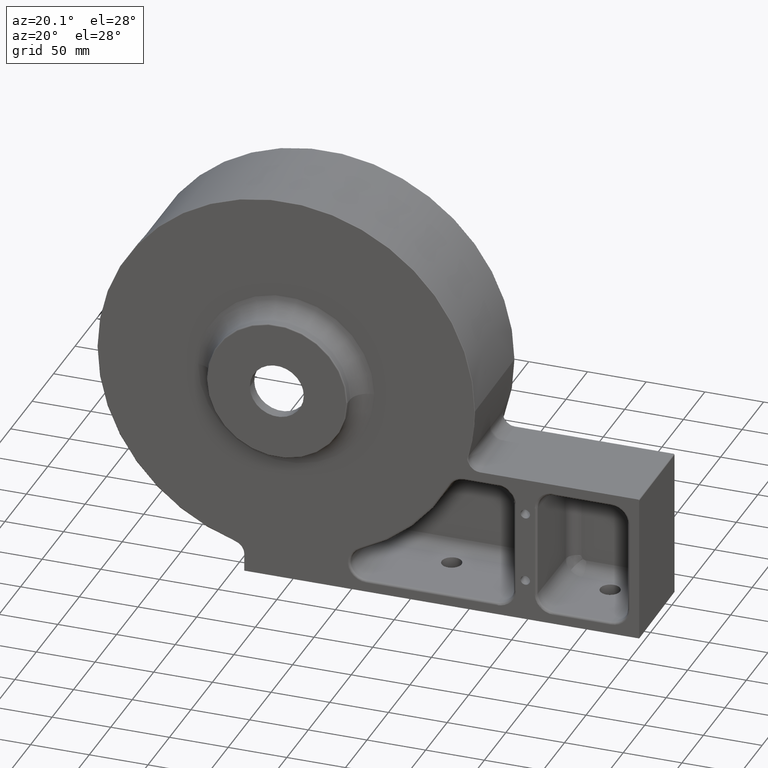
[diagram: clean part render]
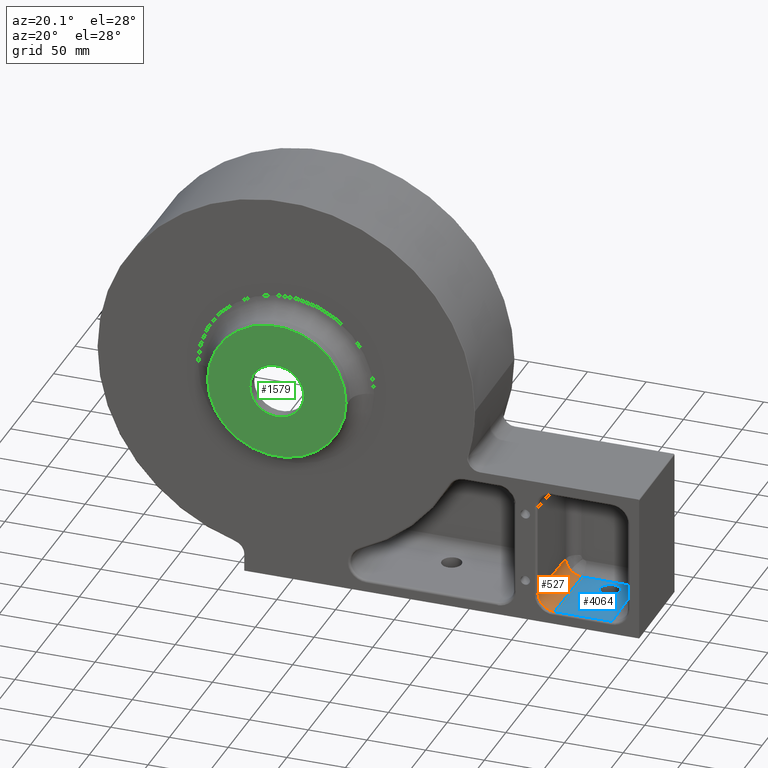
[diagram: same view with three faces highlighted in distinct colors, each labeled with its STEP entity id]
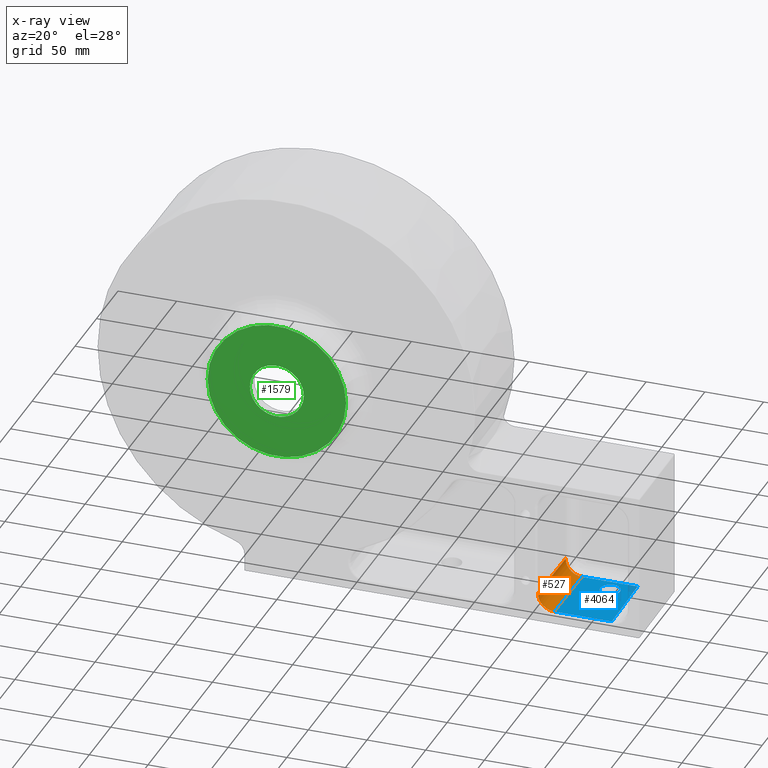
[diagram: x-ray of the same camera — body ghosted, the three highlighted faces saturated]
A machine part, auxiliary view with three faces highlighted in distinct colors.
The next image is the same camera in x-ray (body ghosted, the three faces saturated) — at least one of them is partly hidden behind the body in this view.
Their STEP definitions:

[orange] entity #527 — the highlighted cylindrical surface (edge-blend (fillet) strip) has radius 14 mm, axis along (-0.0262, -0.9993, -0.0262).
#191 = CARTESIAN_POINT ( 'NONE',  ( 215.3721655746571741, 84.06116045583146956, -154.3744156378994603 ) ) ;
#207 = CARTESIAN_POINT ( 'NONE',  ( 217.8907358500262319, 23.72537673625769017, -165.8510479121883066 ) ) ;
#262 = VERTEX_POINT ( 'NONE', #2860 ) ;
#324 = CARTESIAN_POINT ( 'NONE',  ( 219.4735199301286173, 84.16946215522769137, -164.2682638320858928 ) ) ;
#386 =( BOUNDED_CURVE ( )  B_SPLINE_CURVE ( 3, ( #926, #2517, #638, #2188 ),
 .UNSPECIFIED., .F., .F. ) 
 B_SPLINE_CURVE_WITH_KNOTS ( ( 4, 4 ),
 ( 5.498129760120304965, 6.283185307179586232 ),
 .UNSPECIFIED. ) 
 CURVE ( )  GEOMETRIC_REPRESENTATION_ITEM ( )  RATIONAL_B_SPLINE_CURVE ( ( 1.000000000000000000, 0.9492967171685287031, 0.9492967171685287031, 1.000000000000000000 ) ) 
 REPRESENTATION_ITEM ( '' )  );
#527 = ADVANCED_FACE ( 'NONE', ( #1168 ), #1188, .F. ) ;
#620 = LINE ( 'NONE', #2829, #2485 ) ;
#638 = CARTESIAN_POINT ( 'NONE',  ( 215.2313594909512631, 23.72537673625769017, -163.1916715531133377 ) ) ;
#712 = CARTESIAN_POINT ( 'NONE',  ( 224.0254047391594270, 23.73298248603276406, -169.9493671242863684 ) ) ;
#714 = CARTESIAN_POINT ( 'NONE',  ( 229.3673681243149929, 84.06116045583145535, -168.3696181875572790 ) ) ;
#724 = CARTESIAN_POINT ( 'NONE',  ( 225.6069938378592781, 84.13143340635230061, -168.3677780255864604 ) ) ;
#822 = CARTESIAN_POINT ( 'NONE',  ( 215.3721655746571741, 84.06116045583146956, -154.3744156378994603 ) ) ;
#926 = CARTESIAN_POINT ( 'NONE',  ( 213.7927846703222485, 23.74703707613693737, -155.9537965422344143 ) ) ;
#957 = ORIENTED_EDGE ( 'NONE', *, *, #4040, .F. ) ;
#969 = ORIENTED_EDGE ( 'NONE', *, *, #1998, .T. ) ;
#1007 = EDGE_CURVE ( 'NONE', #2880, #262, #3084, .T. ) ;
#1165 = DIRECTION ( 'NONE',  ( 0.02616798426497926947, 0.9993150019883697555, 0.02616798426497939783 ) ) ;
#1168 = FACE_OUTER_BOUND ( 'NONE', #1342, .T. ) ;
#1188 = CYLINDRICAL_SURFACE ( 'NONE', #2913, 14.00000000000000355 ) ;
#1207 = CARTESIAN_POINT ( 'NONE',  ( 227.6278430550691212, 17.26490087646734750, -156.1139407071454173 ) ) ;
#1240 = CARTESIAN_POINT ( 'NONE',  ( 227.7879872199800388, 23.74703707613694093, -169.9489990918922331 ) ) ;
#1335 = VECTOR ( 'NONE', #1165, 1000.000000000000227 ) ;
#1342 = EDGE_LOOP ( 'NONE', ( #1946, #3125, #3373, #957, #2662, #969 ) ) ;
#1509 = LINE ( 'NONE', #4012, #1335 ) ;
#1652 =( BOUNDED_CURVE ( )  B_SPLINE_CURVE ( 3, ( #2433, #3755, #1762, #191 ),
 .UNSPECIFIED., .F., .T. ) 
 B_SPLINE_CURVE_WITH_KNOTS ( ( 4, 4 ),
 ( -1.776356839400250465E-15, 0.7850555470592772700 ),
 .UNSPECIFIED. ) 
 CURVE ( )  GEOMETRIC_REPRESENTATION_ITEM ( )  RATIONAL_B_SPLINE_CURVE ( ( 1.000000000000000000, 0.9492967171685290362, 0.9492967171685290362, 1.000000000000000000 ) ) 
 REPRESENTATION_ITEM ( '' )  );
#1729 = EDGE_CURVE ( 'NONE', #3095, #2033, #386, .T. ) ;
#1762 = CARTESIAN_POINT ( 'NONE',  ( 215.3740057366280212, 84.13143340635230061, -158.1347899243551751 ) ) ;
#1809 = DIRECTION ( 'NONE',  ( 0.0000000000000000000, 0.02617694830787322194, -0.9996573249755572599 ) ) ;
#1820 =( BOUNDED_CURVE ( )  B_SPLINE_CURVE ( 3, ( #3895, #2922, #712, #2687 ),
 .UNSPECIFIED., .F., .T. ) 
 B_SPLINE_CURVE_WITH_KNOTS ( ( 4, 4 ),
 ( 0.0000000000000000000, 0.7850555470592749385 ),
 .UNSPECIFIED. ) 
 CURVE ( )  GEOMETRIC_REPRESENTATION_ITEM ( )  RATIONAL_B_SPLINE_CURVE ( ( 1.000000000000000000, 0.9492967171685294803, 0.9492967171685294803, 1.000000000000000000 ) ) 
 REPRESENTATION_ITEM ( '' )  );
#1946 = ORIENTED_EDGE ( 'NONE', *, *, #2787, .F. ) ;
#1988 = CARTESIAN_POINT ( 'NONE',  ( 222.1328962892035577, 84.16946215522769137, -166.9276401911608332 ) ) ;
#1998 = EDGE_CURVE ( 'NONE', #262, #3214, #1652, .T. ) ;
#2033 = VERTEX_POINT ( 'NONE', #207 ) ;
#2036 = CARTESIAN_POINT ( 'NONE',  ( 213.7927846703222485, 23.74703707613693737, -155.9537965422344143 ) ) ;
#2103 = VERTEX_POINT ( 'NONE', #1240 ) ;
#2188 = CARTESIAN_POINT ( 'NONE',  ( 217.8907358500262319, 23.72537673625769017, -165.8510479121883066 ) ) ;
#2424 = DIRECTION ( 'NONE',  ( -0.02616798426497927640, -0.9993150019883699775, -0.02616798426497940130 ) ) ;
#2433 = CARTESIAN_POINT ( 'NONE',  ( 219.4735199301286173, 84.16946215522769137, -164.2682638320858928 ) ) ;
#2485 = VECTOR ( 'NONE', #2815, 1000.000000000000227 ) ;
#2517 = CARTESIAN_POINT ( 'NONE',  ( 213.7924166379281417, 23.73298248603276406, -159.7163790230550546 ) ) ;
#2662 = ORIENTED_EDGE ( 'NONE', *, *, #1007, .T. ) ;
#2687 = CARTESIAN_POINT ( 'NONE',  ( 227.7879872199800388, 23.74703707613694093, -169.9489990918922331 ) ) ;
#2787 = EDGE_CURVE ( 'NONE', #3095, #3214, #1509, .T. ) ;
#2815 = DIRECTION ( 'NONE',  ( -0.02616798426497926947, -0.9993150019883697555, -0.02616798426497939437 ) ) ;
#2829 = CARTESIAN_POINT ( 'NONE',  ( 227.6278430550690643, 17.63137815277757170, -170.1091432568032076 ) ) ;
#2860 = CARTESIAN_POINT ( 'NONE',  ( 219.4735199301286173, 84.16946215522769137, -164.2682638320858928 ) ) ;
#2880 = VERTEX_POINT ( 'NONE', #714 ) ;
#2913 = AXIS2_PLACEMENT_3D ( 'NONE', #1207, #2424, #1809 ) ;
#2922 = CARTESIAN_POINT ( 'NONE',  ( 220.5501122091011439, 23.72537673625769372, -168.5104242712632185 ) ) ;
#3066 = EDGE_CURVE ( 'NONE', #2033, #2103, #1820, .T. ) ;
#3084 =( BOUNDED_CURVE ( )  B_SPLINE_CURVE ( 3, ( #3564, #724, #1988, #324 ),
 .UNSPECIFIED., .F., .F. ) 
 B_SPLINE_CURVE_WITH_KNOTS ( ( 4, 4 ),
 ( 5.498129760120308518, 6.283185307179584456 ),
 .UNSPECIFIED. ) 
 CURVE ( )  GEOMETRIC_REPRESENTATION_ITEM ( )  RATIONAL_B_SPLINE_CURVE ( ( 1.000000000000000000, 0.9492967171685290362, 0.9492967171685290362, 1.000000000000000000 ) ) 
 REPRESENTATION_ITEM ( '' )  );
#3095 = VERTEX_POINT ( 'NONE', #2036 ) ;
#3125 = ORIENTED_EDGE ( 'NONE', *, *, #1729, .T. ) ;
#3214 = VERTEX_POINT ( 'NONE', #822 ) ;
#3373 = ORIENTED_EDGE ( 'NONE', *, *, #3066, .T. ) ;
#3564 = CARTESIAN_POINT ( 'NONE',  ( 229.3673681243149929, 84.06116045583145535, -168.3696181875572790 ) ) ;
#3755 = CARTESIAN_POINT ( 'NONE',  ( 216.8141435710536769, 84.16946215522769137, -161.6088874730109524 ) ) ;
#3895 = CARTESIAN_POINT ( 'NONE',  ( 217.8907358500262319, 23.72537673625769017, -165.8510479121883066 ) ) ;
#4012 = CARTESIAN_POINT ( 'NONE',  ( 213.8046084631491510, 24.19856950724317457, -155.9419727494075119 ) ) ;
#4040 = EDGE_CURVE ( 'NONE', #2880, #2103, #620, .T. ) ;

[blue] entity #4064 — the highlighted planar face has unit normal (0, 0.0262, -0.9997).
#31 = CARTESIAN_POINT ( 'NONE',  ( 249.2417837622145100, 71.79939097275266136, -168.6907039215406314 ) ) ;
#168 = ORIENTED_EDGE ( 'NONE', *, *, #2575, .F. ) ;
#186 = VERTEX_POINT ( 'NONE', #3805 ) ;
#374 = LINE ( 'NONE', #2550, #616 ) ;
#376 = VERTEX_POINT ( 'NONE', #2652 ) ;
#616 = VECTOR ( 'NONE', #3538, 1000.000000000000114 ) ;
#620 = LINE ( 'NONE', #2829, #2485 ) ;
#625 = EDGE_LOOP ( 'NONE', ( #1768, #711, #168, #2670 ) ) ;
#711 = ORIENTED_EDGE ( 'NONE', *, *, #2489, .T. ) ;
#714 = CARTESIAN_POINT ( 'NONE',  ( 229.3673681243149929, 84.06116045583145535, -168.3696181875572790 ) ) ;
#735 = CARTESIAN_POINT ( 'NONE',  ( 249.2417837622145100, 71.79939097275266136, -168.6907039215406314 ) ) ;
#762 = AXIS2_PLACEMENT_3D ( 'NONE', #3254, #1882, #910 ) ;
#880 = VECTOR ( 'NONE', #3423, 1000.000000000000000 ) ;
#910 = DIRECTION ( 'NONE',  ( 0.0000000000000000000, 0.9996573249755572599, 0.02617694830787320806 ) ) ;
#933 =( BOUNDED_CURVE ( )  B_SPLINE_CURVE ( 3, ( #2623, #1049, #3575, #735 ),
 .UNSPECIFIED., .F., .T. ) 
 B_SPLINE_CURVE_WITH_KNOTS ( ( 4, 4 ),
 ( 1.570796326794901665, 4.712388980384695003 ),
 .UNSPECIFIED. ) 
 CURVE ( )  GEOMETRIC_REPRESENTATION_ITEM ( )  RATIONAL_B_SPLINE_CURVE ( ( 1.000000000000000000, 0.3333333333333333703, 0.3333333333333333703, 1.000000000000000000 ) ) 
 REPRESENTATION_ITEM ( '' )  );
#1006 = VERTEX_POINT ( 'NONE', #2615 ) ;
#1049 = CARTESIAN_POINT ( 'NONE',  ( 266.2417837622145385, 88.79939097275268978, -168.2455432548644296 ) ) ;
#1240 = CARTESIAN_POINT ( 'NONE',  ( 227.7879872199800388, 23.74703707613694093, -169.9489990918922331 ) ) ;
#1581 = PLANE ( 'NONE',  #762 ) ;
#1596 = FACE_OUTER_BOUND ( 'NONE', #625, .T. ) ;
#1658 = DIRECTION ( 'NONE',  ( -1.000000000000000000, -1.214623636765614367E-16, -1.328815102230828392E-16 ) ) ;
#1768 = ORIENTED_EDGE ( 'NONE', *, *, #4040, .T. ) ;
#1882 = DIRECTION ( 'NONE',  ( 1.296564610330057547E-16, 0.02617694830787321153, -0.9996573249755573709 ) ) ;
#1908 = CARTESIAN_POINT ( 'NONE',  ( 249.2417837622145100, 54.79939097275264714, -169.1358645882168048 ) ) ;
#1920 = EDGE_CURVE ( 'NONE', #376, #2836, #933, .T. ) ;
#1944 = CARTESIAN_POINT ( 'NONE',  ( 249.2417837622145100, 71.79939097275266136, -168.6907039215406314 ) ) ;
#2086 = EDGE_LOOP ( 'NONE', ( #2090, #3407 ) ) ;
#2090 = ORIENTED_EDGE ( 'NONE', *, *, #2534, .F. ) ;
#2103 = VERTEX_POINT ( 'NONE', #1240 ) ;
#2207 =( BOUNDED_CURVE ( )  B_SPLINE_CURVE ( 3, ( #31, #1908, #2609, #2875 ),
 .UNSPECIFIED., .F., .T. ) 
 B_SPLINE_CURVE_WITH_KNOTS ( ( 4, 4 ),
 ( 4.712388980384695003, 7.853981633974488119 ),
 .UNSPECIFIED. ) 
 CURVE ( )  GEOMETRIC_REPRESENTATION_ITEM ( )  RATIONAL_B_SPLINE_CURVE ( ( 1.000000000000000000, 0.3333333333333333703, 0.3333333333333333703, 1.000000000000000000 ) ) 
 REPRESENTATION_ITEM ( '' )  );
#2485 = VECTOR ( 'NONE', #2815, 1000.000000000000227 ) ;
#2489 = EDGE_CURVE ( 'NONE', #2103, #186, #3639, .T. ) ;
#2534 = EDGE_CURVE ( 'NONE', #2836, #376, #2207, .T. ) ;
#2550 = CARTESIAN_POINT ( 'NONE',  ( 276.7417837622145953, 21.79939097275269688, -169.9999999999999432 ) ) ;
#2575 = EDGE_CURVE ( 'NONE', #1006, #186, #374, .T. ) ;
#2609 = CARTESIAN_POINT ( 'NONE',  ( 266.2417837622145385, 54.79939097275264714, -169.1358645882168048 ) ) ;
#2615 = CARTESIAN_POINT ( 'NONE',  ( 276.7417837622145953, 84.06116045583142693, -168.3696181875572506 ) ) ;
#2623 = CARTESIAN_POINT ( 'NONE',  ( 266.2417837622145385, 71.79939097275266136, -168.6907039215406314 ) ) ;
#2629 = EDGE_CURVE ( 'NONE', #1006, #2880, #3182, .T. ) ;
#2652 = CARTESIAN_POINT ( 'NONE',  ( 266.2417837622145385, 71.79939097275266136, -168.6907039215406314 ) ) ;
#2670 = ORIENTED_EDGE ( 'NONE', *, *, #2629, .T. ) ;
#2815 = DIRECTION ( 'NONE',  ( -0.02616798426497926947, -0.9993150019883697555, -0.02616798426497939437 ) ) ;
#2829 = CARTESIAN_POINT ( 'NONE',  ( 227.6278430550690643, 17.63137815277757170, -170.1091432568032076 ) ) ;
#2836 = VERTEX_POINT ( 'NONE', #1944 ) ;
#2875 = CARTESIAN_POINT ( 'NONE',  ( 266.2417837622145385, 71.79939097275266136, -168.6907039215406314 ) ) ;
#2880 = VERTEX_POINT ( 'NONE', #714 ) ;
#2915 = VECTOR ( 'NONE', #1658, 1000.000000000000000 ) ;
#3090 = CARTESIAN_POINT ( 'NONE',  ( 276.7417837622144816, 23.74703707613694448, -169.9489990918922047 ) ) ;
#3182 = LINE ( 'NONE', #3224, #2915 ) ;
#3224 = CARTESIAN_POINT ( 'NONE',  ( 68.34871187316556984, 84.06116045583141272, -168.3696181875572790 ) ) ;
#3254 = CARTESIAN_POINT ( 'NONE',  ( 68.34871187316558405, 21.79939097275266846, -169.9999999999999716 ) ) ;
#3407 = ORIENTED_EDGE ( 'NONE', *, *, #1920, .F. ) ;
#3423 = DIRECTION ( 'NONE',  ( 1.000000000000000000, 1.214623636765614367E-16, 1.328815102230828392E-16 ) ) ;
#3538 = DIRECTION ( 'NONE',  ( 1.277164725099799303E-16, -0.9996573249755572599, -0.02617694830787321153 ) ) ;
#3575 = CARTESIAN_POINT ( 'NONE',  ( 249.2417837622145100, 88.79939097275268978, -168.2455432548644296 ) ) ;
#3639 = LINE ( 'NONE', #3090, #880 ) ;
#3805 = CARTESIAN_POINT ( 'NONE',  ( 276.7417837622145953, 23.74703707613694448, -169.9489990918922047 ) ) ;
#4040 = EDGE_CURVE ( 'NONE', #2880, #2103, #620, .T. ) ;
#4064 = ADVANCED_FACE ( 'NONE', ( #4086, #1596 ), #1581, .F. ) ;
#4086 = FACE_BOUND ( 'NONE', #2086, .T. ) ;

[green] entity #1579 — the highlighted planar face has unit normal (0, -1, 0).
#104 = DIRECTION ( 'NONE',  ( -1.000000000000000000, -1.214623636765614121E-16, 0.0000000000000000000 ) ) ;
#176 = FACE_BOUND ( 'NONE', #3105, .T. ) ;
#215 = CARTESIAN_POINT ( 'NONE',  ( -58.99999999999998579, -6.684395046983998997E-16, 0.0000000000000000000 ) ) ;
#232 = AXIS2_PLACEMENT_3D ( 'NONE', #4057, #1216, #2475 ) ;
#343 = CIRCLE ( 'NONE', #3382, 59.00000000000000000 ) ;
#411 = DIRECTION ( 'NONE',  ( -1.214623636765614367E-16, 1.000000000000000000, -0.0000000000000000000 ) ) ;
#451 = DIRECTION ( 'NONE',  ( -1.000000000000000000, -1.214623636765614367E-16, 0.0000000000000000000 ) ) ;
#473 = DIRECTION ( 'NONE',  ( -1.000000000000000000, -1.214623636765614121E-16, 0.0000000000000000000 ) ) ;
#885 = AXIS2_PLACEMENT_3D ( 'NONE', #215, #2777, #2461 ) ;
#1085 = CIRCLE ( 'NONE', #232, 23.00000000000000000 ) ;
#1113 = VERTEX_POINT ( 'NONE', #3614 ) ;
#1151 = CIRCLE ( 'NONE', #1752, 23.00000000000000000 ) ;
#1195 = ORIENTED_EDGE ( 'NONE', *, *, #3424, .T. ) ;
#1216 = DIRECTION ( 'NONE',  ( -1.214623636765614367E-16, 1.000000000000000000, -0.0000000000000000000 ) ) ;
#1300 = VERTEX_POINT ( 'NONE', #1347 ) ;
#1347 = CARTESIAN_POINT ( 'NONE',  ( -22.99999999999998579, -2.793634364560912921E-15, 0.0000000000000000000 ) ) ;
#1546 = ORIENTED_EDGE ( 'NONE', *, *, #3286, .T. ) ;
#1579 = ADVANCED_FACE ( 'NONE', ( #176, #2757 ), #3676, .T. ) ;
#1585 = ORIENTED_EDGE ( 'NONE', *, *, #2897, .F. ) ;
#1752 = AXIS2_PLACEMENT_3D ( 'NONE', #2097, #2413, #451 ) ;
#1899 = EDGE_CURVE ( 'NONE', #1113, #2365, #343, .T. ) ;
#1976 = VERTEX_POINT ( 'NONE', #2392 ) ;
#2097 = CARTESIAN_POINT ( 'NONE',  ( 1.425374463786146781E-14, 0.0000000000000000000, 0.0000000000000000000 ) ) ;
#2196 = CARTESIAN_POINT ( 'NONE',  ( 59.00000000000001421, 2.104406726473158229E-14, 7.286648454926750781E-15 ) ) ;
#2333 = CARTESIAN_POINT ( 'NONE',  ( 1.425374463786146781E-14, 1.387778780781445676E-14, 0.0000000000000000000 ) ) ;
#2365 = VERTEX_POINT ( 'NONE', #2196 ) ;
#2392 = CARTESIAN_POINT ( 'NONE',  ( 23.00000000000001421, 2.793634364560912921E-15, 2.816687638038912352E-15 ) ) ;
#2413 = DIRECTION ( 'NONE',  ( -1.214623636765614367E-16, 1.000000000000000000, -0.0000000000000000000 ) ) ;
#2461 = DIRECTION ( 'NONE',  ( 1.000000000000000000, 1.214623636765614367E-16, 0.0000000000000000000 ) ) ;
#2475 = DIRECTION ( 'NONE',  ( -1.000000000000000000, -1.214623636765614367E-16, 0.0000000000000000000 ) ) ;
#2685 = EDGE_LOOP ( 'NONE', ( #3492, #1585 ) ) ;
#2757 = FACE_OUTER_BOUND ( 'NONE', #2685, .T. ) ;
#2777 = DIRECTION ( 'NONE',  ( 1.214623636765614367E-16, -1.000000000000000000, 0.0000000000000000000 ) ) ;
#2897 = EDGE_CURVE ( 'NONE', #2365, #1113, #3797, .T. ) ;
#2946 = DIRECTION ( 'NONE',  ( -1.214623636765614367E-16, 1.000000000000000000, -0.0000000000000000000 ) ) ;
#3056 = AXIS2_PLACEMENT_3D ( 'NONE', #2333, #411, #104 ) ;
#3105 = EDGE_LOOP ( 'NONE', ( #1546, #1195 ) ) ;
#3286 = EDGE_CURVE ( 'NONE', #1300, #1976, #1151, .T. ) ;
#3382 = AXIS2_PLACEMENT_3D ( 'NONE', #3643, #2946, #473 ) ;
#3424 = EDGE_CURVE ( 'NONE', #1976, #1300, #1085, .T. ) ;
#3492 = ORIENTED_EDGE ( 'NONE', *, *, #1899, .F. ) ;
#3614 = CARTESIAN_POINT ( 'NONE',  ( -58.99999999999998579, 6.711508350897332014E-15, 0.0000000000000000000 ) ) ;
#3643 = CARTESIAN_POINT ( 'NONE',  ( 1.425374463786146781E-14, 1.387778780781445676E-14, 0.0000000000000000000 ) ) ;
#3676 = PLANE ( 'NONE',  #885 ) ;
#3797 = CIRCLE ( 'NONE', #3056, 59.00000000000000000 ) ;
#4057 = CARTESIAN_POINT ( 'NONE',  ( 1.425374463786146781E-14, 0.0000000000000000000, 0.0000000000000000000 ) ) ;